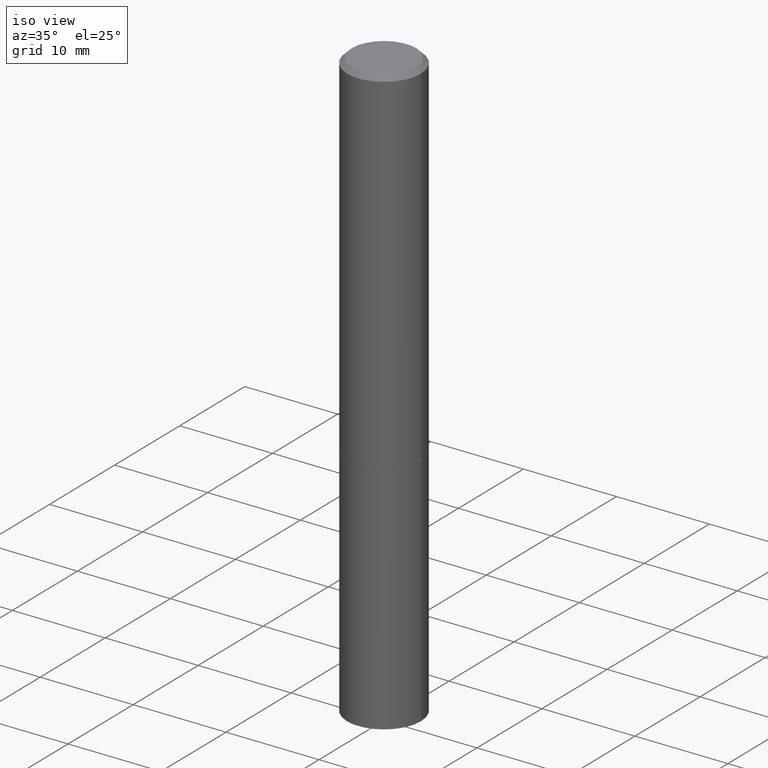
[diagram: clean part render]
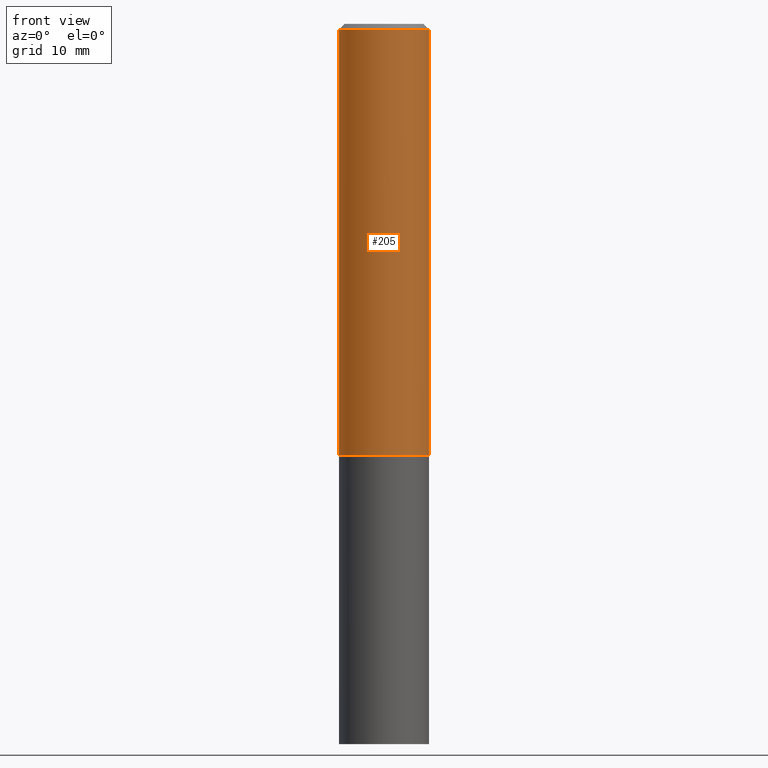
[diagram: tour spotlight — one face highlighted and labeled with its STEP entity id]
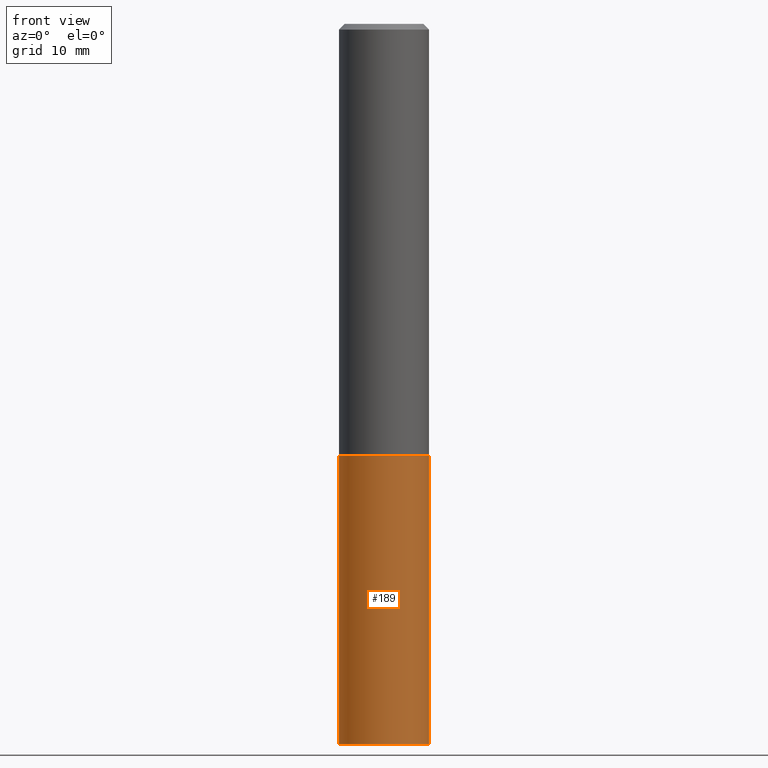
[diagram: tour spotlight — one face highlighted and labeled with its STEP entity id]
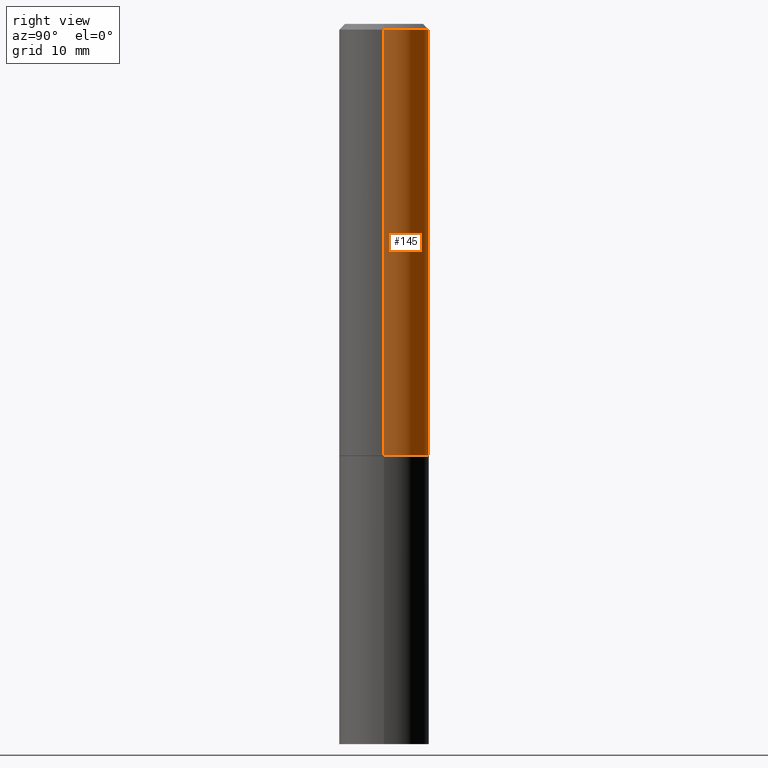
[diagram: tour spotlight — one face highlighted and labeled with its STEP entity id]
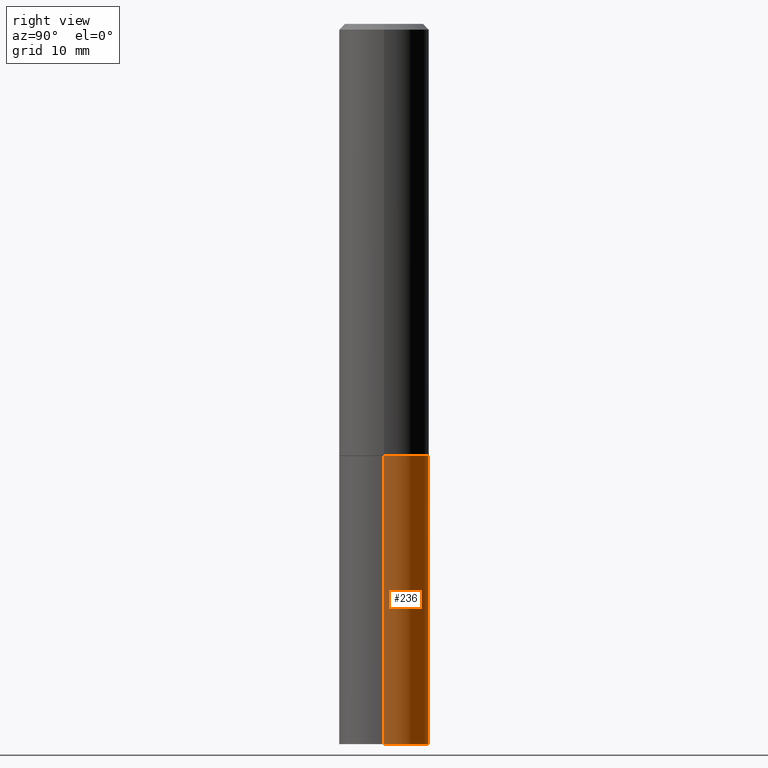
[diagram: tour spotlight — one face highlighted and labeled with its STEP entity id]
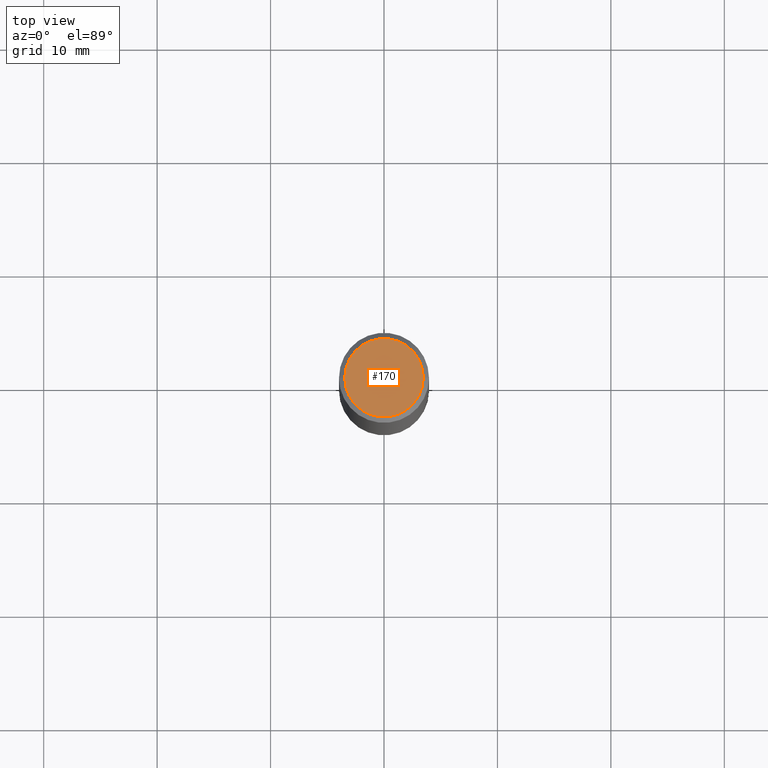
[diagram: tour spotlight — one face highlighted and labeled with its STEP entity id]
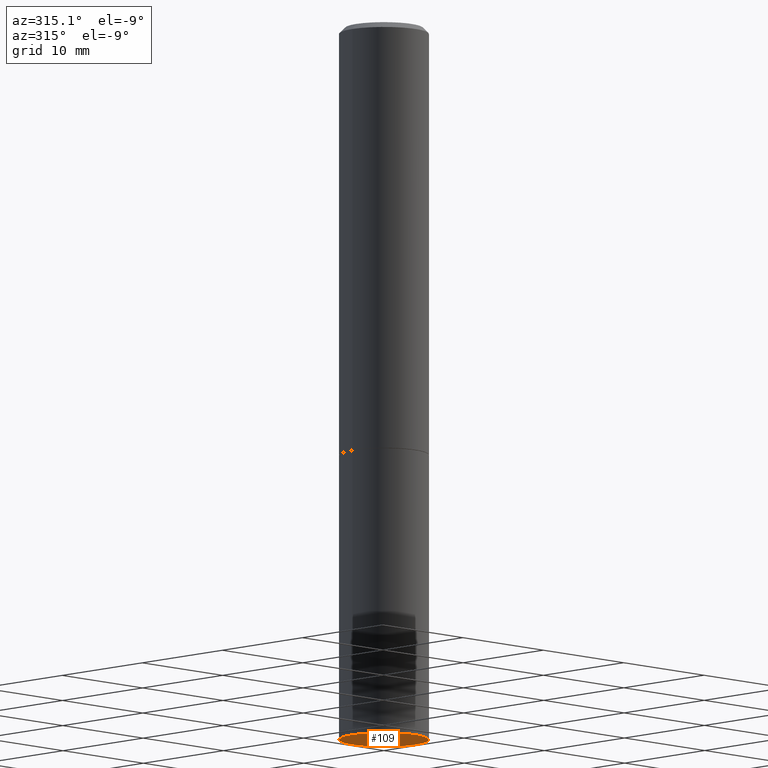
[diagram: tour spotlight — one face highlighted and labeled with its STEP entity id]
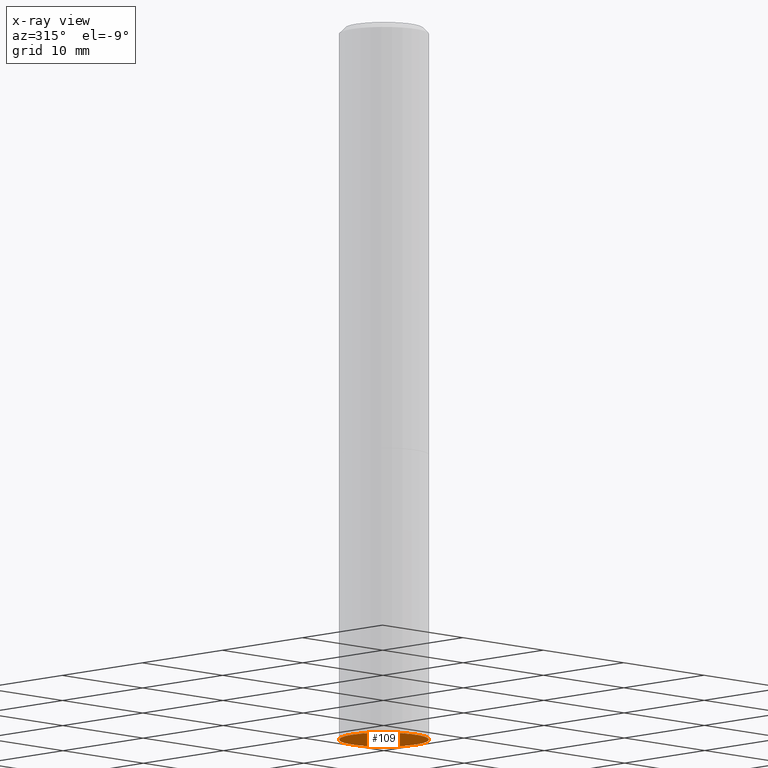
[diagram: x-ray of the same camera — body ghosted, this tour face saturated]
A machine part: a face-by-face anatomy tour. The part has 12 B-rep faces; the first image is the clean iso view, then the 6 largest visible faces are spotlighted one at a time (largest first), each with its STEP entity span.

Face 1 — front view, entity #205. In plain terms, the highlighted cylindrical surface (partial cylindrical patch) has radius 3.9687 mm, axis along (-0, 0, 1).
Definition (entity closure, byte-faithful):
#32 = DIRECTION ( 'NONE',  ( -2.445468806185136877E-29, 3.491481338843145188E-15, 1.000000000000000000 ) ) ;
#37 = EDGE_LOOP ( 'NONE', ( #268, #164, #311, #252 ) ) ;
#68 = DIRECTION ( 'NONE',  ( -2.445468806185136597E-29, 3.491481338843145583E-15, 1.000000000000000000 ) ) ;
#69 = VERTEX_POINT ( 'NONE', #113 ) ;
#73 = VERTEX_POINT ( 'NONE', #337 ) ;
#89 = DIRECTION ( 'NONE',  ( 1.000000000000000000, -6.982962677686266711E-15, 4.876176775795935232E-29 ) ) ;
#113 = CARTESIAN_POINT ( 'NONE',  ( 0.1562500000000000000, -6.324818445314355132E-15, -1.499000000000000110 ) ) ;
#119 = CARTESIAN_POINT ( 'NONE',  ( -0.1562499999999999445, 1.110223024625156146E-15, -7.685836078523286956E-30 ) ) ;
#136 = AXIS2_PLACEMENT_3D ( 'NONE', #215, #68, #251 ) ;
#137 = DIRECTION ( 'NONE',  ( -2.445468806185136877E-29, 3.491481338843145188E-15, 1.000000000000000000 ) ) ;
#151 = FACE_OUTER_BOUND ( 'NONE', #37, .T. ) ;
#163 = VERTEX_POINT ( 'NONE', #279 ) ;
#164 = ORIENTED_EDGE ( 'NONE', *, *, #356, .T. ) ;
#167 = EDGE_CURVE ( 'NONE', #69, #73, #362, .T. ) ;
#174 = CARTESIAN_POINT ( 'NONE',  ( 0.1562499999999999445, -1.091087918388478779E-15, 7.619026212181146173E-30 ) ) ;
#182 = CARTESIAN_POINT ( 'NONE',  ( 0.000000000000000000, 0.000000000000000000, 0.000000000000000000 ) ) ;
#205 = ADVANCED_FACE ( 'NONE', ( #151 ), #316, .T. ) ;
#212 = VECTOR ( 'NONE', #32, 39.37007874015748143 ) ;
#213 = AXIS2_PLACEMENT_3D ( 'NONE', #296, #325, #224 ) ;
#215 = CARTESIAN_POINT ( 'NONE',  ( 3.665757740471519853E-29, -5.233730526925875958E-15, -1.499000000000000110 ) ) ;
#222 = VECTOR ( 'NONE', #137, 39.37007874015748143 ) ;
#224 = DIRECTION ( 'NONE',  ( 1.000000000000000000, -6.982962677686265133E-15, 0.000000000000000000 ) ) ;
#230 = EDGE_CURVE ( 'NONE', #275, #163, #263, .T. ) ;
#239 = AXIS2_PLACEMENT_3D ( 'NONE', #182, #348, #89 ) ;
#251 = DIRECTION ( 'NONE',  ( 1.000000000000000000, -6.982962677686269077E-15, 0.000000000000000000 ) ) ;
#252 = ORIENTED_EDGE ( 'NONE', *, *, #359, .F. ) ;
#263 = LINE ( 'NONE', #119, #212 ) ;
#268 = ORIENTED_EDGE ( 'NONE', *, *, #230, .F. ) ;
#275 = VERTEX_POINT ( 'NONE', #287 ) ;
#279 = CARTESIAN_POINT ( 'NONE',  ( -0.1562499999999998335, 1.021258291611615086E-15, -0.02000000000000003511 ) ) ;
#287 = CARTESIAN_POINT ( 'NONE',  ( -0.1562500000000000000, -1.541557052226212102E-15, -1.499000000000000110 ) ) ;
#296 = CARTESIAN_POINT ( 'NONE',  ( 4.890937612370281041E-31, -6.982962677686302702E-17, -0.02000000000000003511 ) ) ;
#311 = ORIENTED_EDGE ( 'NONE', *, *, #167, .T. ) ;
#316 = CYLINDRICAL_SURFACE ( 'NONE', #239, 0.1562499999999999445 ) ;
#325 = DIRECTION ( 'NONE',  ( -2.445468806185136597E-29, 3.491481338843145583E-15, 1.000000000000000000 ) ) ;
#337 = CARTESIAN_POINT ( 'NONE',  ( 0.1562499999999998335, -1.141782438928663724E-15, -0.02000000000000003511 ) ) ;
#339 = CIRCLE ( 'NONE', #136, 0.1562500000000000000 ) ;
#346 = CIRCLE ( 'NONE', #213, 0.1562499999999998335 ) ;
#348 = DIRECTION ( 'NONE',  ( -2.445468806185136597E-29, 3.491481338843145583E-15, 1.000000000000000000 ) ) ;
#356 = EDGE_CURVE ( 'NONE', #275, #69, #339, .T. ) ;
#359 = EDGE_CURVE ( 'NONE', #163, #73, #346, .T. ) ;
#362 = LINE ( 'NONE', #174, #222 ) ;

Face 2 — front view, entity #189. In plain terms, the highlighted cylindrical surface (partial cylindrical patch) has radius 3.9688 mm, axis along (-0, 0, 1).
Definition (entity closure, byte-faithful):
#1 = EDGE_CURVE ( 'NONE', #314, #195, #307, .T. ) ;
#21 = LINE ( 'NONE', #332, #179 ) ;
#59 = VECTOR ( 'NONE', #277, 39.37007874015748143 ) ;
#78 = DIRECTION ( 'NONE',  ( -2.445468806185136877E-29, 3.491481338843145188E-15, 1.000000000000000000 ) ) ;
#80 = EDGE_CURVE ( 'NONE', #301, #187, #21, .T. ) ;
#88 = CARTESIAN_POINT ( 'NONE',  ( 0.000000000000000000, 0.000000000000000000, 0.000000000000000000 ) ) ;
#90 = AXIS2_PLACEMENT_3D ( 'NONE', #108, #133, #335 ) ;
#91 = EDGE_CURVE ( 'NONE', #314, #301, #120, .T. ) ;
#103 = ORIENTED_EDGE ( 'NONE', *, *, #91, .T. ) ;
#104 = AXIS2_PLACEMENT_3D ( 'NONE', #88, #242, #183 ) ;
#108 = CARTESIAN_POINT ( 'NONE',  ( 6.113672015462842613E-29, -8.728703347107864943E-15, -2.500000000000000000 ) ) ;
#118 = CARTESIAN_POINT ( 'NONE',  ( 0.1562500000000000000, -9.819791265496344905E-15, -2.500000000000000000 ) ) ;
#120 = CIRCLE ( 'NONE', #90, 0.1562500000000000000 ) ;
#133 = DIRECTION ( 'NONE',  ( -2.445468806185136597E-29, 3.491481338843145583E-15, 1.000000000000000000 ) ) ;
#154 = EDGE_LOOP ( 'NONE', ( #216, #103, #360, #299 ) ) ;
#177 = DIRECTION ( 'NONE',  ( -2.445468806185136597E-29, 3.491481338843145583E-15, 1.000000000000000000 ) ) ;
#179 = VECTOR ( 'NONE', #78, 39.37007874015748143 ) ;
#183 = DIRECTION ( 'NONE',  ( 1.000000000000000000, -6.982962677686266711E-15, 4.876176775795936353E-29 ) ) ;
#184 = CARTESIAN_POINT ( 'NONE',  ( -0.1562500000000000000, -5.872739653061135414E-15, -2.500000000000000000 ) ) ;
#187 = VERTEX_POINT ( 'NONE', #235 ) ;
#189 = ADVANCED_FACE ( 'NONE', ( #261 ), #318, .T. ) ;
#195 = VERTEX_POINT ( 'NONE', #343 ) ;
#216 = ORIENTED_EDGE ( 'NONE', *, *, #1, .F. ) ;
#235 = CARTESIAN_POINT ( 'NONE',  ( 0.1562500000000000000, -6.328309926653198139E-15, -1.500000000000000222 ) ) ;
#237 = DIRECTION ( 'NONE',  ( 1.000000000000000000, -6.982962677686269077E-15, 0.000000000000000000 ) ) ;
#242 = DIRECTION ( 'NONE',  ( -2.445468806185136597E-29, 3.491481338843145583E-15, 1.000000000000000000 ) ) ;
#259 = CARTESIAN_POINT ( 'NONE',  ( -0.1562500000000000000, 1.110223024625156540E-15, -7.685836078523291160E-30 ) ) ;
#261 = FACE_OUTER_BOUND ( 'NONE', #154, .T. ) ;
#265 = AXIS2_PLACEMENT_3D ( 'NONE', #315, #177, #237 ) ;
#277 = DIRECTION ( 'NONE',  ( -2.445468806185136877E-29, 3.491481338843145188E-15, 1.000000000000000000 ) ) ;
#299 = ORIENTED_EDGE ( 'NONE', *, *, #340, .F. ) ;
#301 = VERTEX_POINT ( 'NONE', #118 ) ;
#307 = LINE ( 'NONE', #259, #59 ) ;
#313 = CIRCLE ( 'NONE', #265, 0.1562500000000000000 ) ;
#314 = VERTEX_POINT ( 'NONE', #184 ) ;
#315 = CARTESIAN_POINT ( 'NONE',  ( 3.668203209277704895E-29, -5.237222008264718177E-15, -1.500000000000000222 ) ) ;
#318 = CYLINDRICAL_SURFACE ( 'NONE', #104, 0.1562500000000000000 ) ;
#332 = CARTESIAN_POINT ( 'NONE',  ( 0.1562500000000000000, -1.091087918388479174E-15, 7.619026212181150377E-30 ) ) ;
#335 = DIRECTION ( 'NONE',  ( 1.000000000000000000, -6.982962677686269077E-15, 0.000000000000000000 ) ) ;
#340 = EDGE_CURVE ( 'NONE', #195, #187, #313, .T. ) ;
#343 = CARTESIAN_POINT ( 'NONE',  ( -0.1562500000000000000, -5.872739653061135414E-15, -1.500000000000000222 ) ) ;
#360 = ORIENTED_EDGE ( 'NONE', *, *, #80, .T. ) ;

Face 3 — right view, entity #145. In plain terms, the highlighted cylindrical surface (partial cylindrical patch) has radius 3.9687 mm, axis along (-0, 0, 1).
Definition (entity closure, byte-faithful):
#4 = CARTESIAN_POINT ( 'NONE',  ( 4.890937612370281041E-31, -6.982962677686302702E-17, -0.02000000000000003511 ) ) ;
#13 = ORIENTED_EDGE ( 'NONE', *, *, #230, .T. ) ;
#22 = CARTESIAN_POINT ( 'NONE',  ( 0.000000000000000000, 0.000000000000000000, 0.000000000000000000 ) ) ;
#30 = DIRECTION ( 'NONE',  ( -2.445468806185136597E-29, 3.491481338843145583E-15, 1.000000000000000000 ) ) ;
#32 = DIRECTION ( 'NONE',  ( -2.445468806185136877E-29, 3.491481338843145188E-15, 1.000000000000000000 ) ) ;
#52 = DIRECTION ( 'NONE',  ( -2.445468806185136597E-29, 3.491481338843145583E-15, 1.000000000000000000 ) ) ;
#69 = VERTEX_POINT ( 'NONE', #113 ) ;
#73 = VERTEX_POINT ( 'NONE', #337 ) ;
#76 = CIRCLE ( 'NONE', #207, 0.1562500000000000000 ) ;
#113 = CARTESIAN_POINT ( 'NONE',  ( 0.1562500000000000000, -6.324818445314355132E-15, -1.499000000000000110 ) ) ;
#119 = CARTESIAN_POINT ( 'NONE',  ( -0.1562499999999999445, 1.110223024625156146E-15, -7.685836078523286956E-30 ) ) ;
#137 = DIRECTION ( 'NONE',  ( -2.445468806185136877E-29, 3.491481338843145188E-15, 1.000000000000000000 ) ) ;
#140 = CARTESIAN_POINT ( 'NONE',  ( 3.665757740471519853E-29, -5.233730526925875958E-15, -1.499000000000000110 ) ) ;
#143 = DIRECTION ( 'NONE',  ( 1.000000000000000000, -6.982962677686265133E-15, 0.000000000000000000 ) ) ;
#145 = ADVANCED_FACE ( 'NONE', ( #233 ), #171, .T. ) ;
#150 = EDGE_CURVE ( 'NONE', #69, #275, #76, .T. ) ;
#158 = CIRCLE ( 'NONE', #345, 0.1562499999999998335 ) ;
#161 = ORIENTED_EDGE ( 'NONE', *, *, #290, .F. ) ;
#163 = VERTEX_POINT ( 'NONE', #279 ) ;
#167 = EDGE_CURVE ( 'NONE', #69, #73, #362, .T. ) ;
#171 = CYLINDRICAL_SURFACE ( 'NONE', #244, 0.1562499999999999445 ) ;
#174 = CARTESIAN_POINT ( 'NONE',  ( 0.1562499999999999445, -1.091087918388478779E-15, 7.619026212181146173E-30 ) ) ;
#194 = ORIENTED_EDGE ( 'NONE', *, *, #150, .T. ) ;
#207 = AXIS2_PLACEMENT_3D ( 'NONE', #140, #52, #331 ) ;
#212 = VECTOR ( 'NONE', #32, 39.37007874015748143 ) ;
#222 = VECTOR ( 'NONE', #137, 39.37007874015748143 ) ;
#226 = DIRECTION ( 'NONE',  ( 1.000000000000000000, -6.982962677686266711E-15, 4.876176775795935232E-29 ) ) ;
#230 = EDGE_CURVE ( 'NONE', #275, #163, #263, .T. ) ;
#233 = FACE_OUTER_BOUND ( 'NONE', #294, .T. ) ;
#244 = AXIS2_PLACEMENT_3D ( 'NONE', #22, #333, #226 ) ;
#263 = LINE ( 'NONE', #119, #212 ) ;
#275 = VERTEX_POINT ( 'NONE', #287 ) ;
#279 = CARTESIAN_POINT ( 'NONE',  ( -0.1562499999999998335, 1.021258291611615086E-15, -0.02000000000000003511 ) ) ;
#287 = CARTESIAN_POINT ( 'NONE',  ( -0.1562500000000000000, -1.541557052226212102E-15, -1.499000000000000110 ) ) ;
#290 = EDGE_CURVE ( 'NONE', #73, #163, #158, .T. ) ;
#294 = EDGE_LOOP ( 'NONE', ( #194, #13, #161, #326 ) ) ;
#326 = ORIENTED_EDGE ( 'NONE', *, *, #167, .F. ) ;
#331 = DIRECTION ( 'NONE',  ( 1.000000000000000000, -6.982962677686269077E-15, 0.000000000000000000 ) ) ;
#333 = DIRECTION ( 'NONE',  ( -2.445468806185136597E-29, 3.491481338843145583E-15, 1.000000000000000000 ) ) ;
#337 = CARTESIAN_POINT ( 'NONE',  ( 0.1562499999999998335, -1.141782438928663724E-15, -0.02000000000000003511 ) ) ;
#345 = AXIS2_PLACEMENT_3D ( 'NONE', #4, #30, #143 ) ;
#362 = LINE ( 'NONE', #174, #222 ) ;

Face 4 — right view, entity #236. In plain terms, the highlighted cylindrical surface (partial cylindrical patch) has radius 3.9688 mm, axis along (-0, 0, 1).
Definition (entity closure, byte-faithful):
#1 = EDGE_CURVE ( 'NONE', #314, #195, #307, .T. ) ;
#2 = FACE_OUTER_BOUND ( 'NONE', #229, .T. ) ;
#17 = CIRCLE ( 'NONE', #282, 0.1562500000000000000 ) ;
#21 = LINE ( 'NONE', #332, #179 ) ;
#31 = DIRECTION ( 'NONE',  ( 1.000000000000000000, -6.982962677686266711E-15, 4.876176775795936353E-29 ) ) ;
#46 = AXIS2_PLACEMENT_3D ( 'NONE', #281, #284, #48 ) ;
#48 = DIRECTION ( 'NONE',  ( 1.000000000000000000, -6.982962677686269077E-15, 0.000000000000000000 ) ) ;
#49 = DIRECTION ( 'NONE',  ( -2.445468806185136597E-29, 3.491481338843145583E-15, 1.000000000000000000 ) ) ;
#55 = EDGE_CURVE ( 'NONE', #301, #314, #115, .T. ) ;
#59 = VECTOR ( 'NONE', #277, 39.37007874015748143 ) ;
#61 = DIRECTION ( 'NONE',  ( -2.445468806185136597E-29, 3.491481338843145583E-15, 1.000000000000000000 ) ) ;
#67 = ORIENTED_EDGE ( 'NONE', *, *, #80, .F. ) ;
#78 = DIRECTION ( 'NONE',  ( -2.445468806185136877E-29, 3.491481338843145188E-15, 1.000000000000000000 ) ) ;
#80 = EDGE_CURVE ( 'NONE', #301, #187, #21, .T. ) ;
#114 = DIRECTION ( 'NONE',  ( 1.000000000000000000, -6.982962677686269077E-15, 0.000000000000000000 ) ) ;
#115 = CIRCLE ( 'NONE', #46, 0.1562500000000000000 ) ;
#118 = CARTESIAN_POINT ( 'NONE',  ( 0.1562500000000000000, -9.819791265496344905E-15, -2.500000000000000000 ) ) ;
#128 = ORIENTED_EDGE ( 'NONE', *, *, #1, .T. ) ;
#132 = ORIENTED_EDGE ( 'NONE', *, *, #55, .T. ) ;
#139 = EDGE_CURVE ( 'NONE', #187, #195, #17, .T. ) ;
#179 = VECTOR ( 'NONE', #78, 39.37007874015748143 ) ;
#184 = CARTESIAN_POINT ( 'NONE',  ( -0.1562500000000000000, -5.872739653061135414E-15, -2.500000000000000000 ) ) ;
#187 = VERTEX_POINT ( 'NONE', #235 ) ;
#195 = VERTEX_POINT ( 'NONE', #343 ) ;
#228 = AXIS2_PLACEMENT_3D ( 'NONE', #347, #61, #31 ) ;
#229 = EDGE_LOOP ( 'NONE', ( #132, #128, #248, #67 ) ) ;
#235 = CARTESIAN_POINT ( 'NONE',  ( 0.1562500000000000000, -6.328309926653198139E-15, -1.500000000000000222 ) ) ;
#236 = ADVANCED_FACE ( 'NONE', ( #2 ), #366, .T. ) ;
#248 = ORIENTED_EDGE ( 'NONE', *, *, #139, .F. ) ;
#259 = CARTESIAN_POINT ( 'NONE',  ( -0.1562500000000000000, 1.110223024625156540E-15, -7.685836078523291160E-30 ) ) ;
#277 = DIRECTION ( 'NONE',  ( -2.445468806185136877E-29, 3.491481338843145188E-15, 1.000000000000000000 ) ) ;
#281 = CARTESIAN_POINT ( 'NONE',  ( 6.113672015462842613E-29, -8.728703347107864943E-15, -2.500000000000000000 ) ) ;
#282 = AXIS2_PLACEMENT_3D ( 'NONE', #308, #49, #114 ) ;
#284 = DIRECTION ( 'NONE',  ( -2.445468806185136597E-29, 3.491481338843145583E-15, 1.000000000000000000 ) ) ;
#301 = VERTEX_POINT ( 'NONE', #118 ) ;
#307 = LINE ( 'NONE', #259, #59 ) ;
#308 = CARTESIAN_POINT ( 'NONE',  ( 3.668203209277704895E-29, -5.237222008264718177E-15, -1.500000000000000222 ) ) ;
#314 = VERTEX_POINT ( 'NONE', #184 ) ;
#332 = CARTESIAN_POINT ( 'NONE',  ( 0.1562500000000000000, -1.091087918388479174E-15, 7.619026212181150377E-30 ) ) ;
#343 = CARTESIAN_POINT ( 'NONE',  ( -0.1562500000000000000, -5.872739653061135414E-15, -1.500000000000000222 ) ) ;
#347 = CARTESIAN_POINT ( 'NONE',  ( 0.000000000000000000, 0.000000000000000000, 0.000000000000000000 ) ) ;
#366 = CYLINDRICAL_SURFACE ( 'NONE', #228, 0.1562500000000000000 ) ;

Face 5 — top view, entity #170. In plain terms, the highlighted planar face has unit normal (0, -0, -1).
Definition (entity closure, byte-faithful):
#3 = DIRECTION ( 'NONE',  ( -2.445468806185136597E-29, 3.491481338843145583E-15, 1.000000000000000000 ) ) ;
#10 = AXIS2_PLACEMENT_3D ( 'NONE', #289, #342, #121 ) ;
#29 = AXIS2_PLACEMENT_3D ( 'NONE', #203, #175, #285 ) ;
#50 = CARTESIAN_POINT ( 'NONE',  ( 0.1362499999999998435, -1.038262645562516941E-15, 4.268512490107368508E-18 ) ) ;
#51 = CIRCLE ( 'NONE', #306, 0.1362499999999998435 ) ;
#84 = FACE_OUTER_BOUND ( 'NONE', #274, .T. ) ;
#96 = CIRCLE ( 'NONE', #10, 0.1362499999999998435 ) ;
#121 = DIRECTION ( 'NONE',  ( 1.000000000000000000, -6.982962677686266711E-15, 4.876388394912424373E-29 ) ) ;
#144 = CARTESIAN_POINT ( 'NONE',  ( -0.1362499999999998435, 9.863434782231838318E-16, 4.268512490093635087E-18 ) ) ;
#157 = VERTEX_POINT ( 'NONE', #50 ) ;
#170 = ADVANCED_FACE ( 'NONE', ( #84 ), #363, .F. ) ;
#175 = DIRECTION ( 'NONE',  ( 2.438088387897960049E-29, -3.491481338843145188E-15, -1.000000000000000000 ) ) ;
#203 = CARTESIAN_POINT ( 'NONE',  ( 9.514286648347525771E-16, 0.1362499999999998435, -4.735800761723278502E-16 ) ) ;
#204 = DIRECTION ( 'NONE',  ( 1.000000000000000000, -6.982962677686266711E-15, 4.876388394912424373E-29 ) ) ;
#219 = EDGE_CURVE ( 'NONE', #157, #352, #96, .T. ) ;
#253 = ORIENTED_EDGE ( 'NONE', *, *, #292, .T. ) ;
#262 = CARTESIAN_POINT ( 'NONE',  ( -1.043851414335219820E-46, 1.490343170380447200E-32, 4.268512490100411279E-18 ) ) ;
#272 = ORIENTED_EDGE ( 'NONE', *, *, #219, .T. ) ;
#274 = EDGE_LOOP ( 'NONE', ( #253, #272 ) ) ;
#285 = DIRECTION ( 'NONE',  ( -1.000000000000000000, 6.982962677686265922E-15, -4.876176775795935793E-29 ) ) ;
#289 = CARTESIAN_POINT ( 'NONE',  ( -1.043851414335219820E-46, 1.490343170380447200E-32, 4.268512490100411279E-18 ) ) ;
#292 = EDGE_CURVE ( 'NONE', #352, #157, #51, .T. ) ;
#306 = AXIS2_PLACEMENT_3D ( 'NONE', #262, #3, #204 ) ;
#342 = DIRECTION ( 'NONE',  ( -2.445468806185136597E-29, 3.491481338843145583E-15, 1.000000000000000000 ) ) ;
#352 = VERTEX_POINT ( 'NONE', #144 ) ;
#363 = PLANE ( 'NONE',  #29 ) ;

Face 6 — auxiliary view, entity #109. An x-ray twin of the same camera follows (body ghosted, this face saturated) — the face is partly hidden behind the body. In plain terms, the highlighted planar face has unit normal (0, -0, -1).
Definition (entity closure, byte-faithful):
#26 = ORIENTED_EDGE ( 'NONE', *, *, #55, .F. ) ;
#42 = ORIENTED_EDGE ( 'NONE', *, *, #91, .F. ) ;
#46 = AXIS2_PLACEMENT_3D ( 'NONE', #281, #284, #48 ) ;
#48 = DIRECTION ( 'NONE',  ( 1.000000000000000000, -6.982962677686269077E-15, 0.000000000000000000 ) ) ;
#54 = PLANE ( 'NONE',  #264 ) ;
#55 = EDGE_CURVE ( 'NONE', #301, #314, #115, .T. ) ;
#90 = AXIS2_PLACEMENT_3D ( 'NONE', #108, #133, #335 ) ;
#91 = EDGE_CURVE ( 'NONE', #314, #301, #120, .T. ) ;
#106 = EDGE_LOOP ( 'NONE', ( #26, #42 ) ) ;
#108 = CARTESIAN_POINT ( 'NONE',  ( 6.113672015462842613E-29, -8.728703347107864943E-15, -2.500000000000000000 ) ) ;
#109 = ADVANCED_FACE ( 'NONE', ( #255 ), #54, .T. ) ;
#115 = CIRCLE ( 'NONE', #46, 0.1562500000000000000 ) ;
#118 = CARTESIAN_POINT ( 'NONE',  ( 0.1562500000000000000, -9.819791265496344905E-15, -2.500000000000000000 ) ) ;
#120 = CIRCLE ( 'NONE', #90, 0.1562500000000000000 ) ;
#133 = DIRECTION ( 'NONE',  ( -2.445468806185136597E-29, 3.491481338843145583E-15, 1.000000000000000000 ) ) ;
#184 = CARTESIAN_POINT ( 'NONE',  ( -0.1562500000000000000, -5.872739653061135414E-15, -2.500000000000000000 ) ) ;
#199 = DIRECTION ( 'NONE',  ( -1.000000000000000000, 6.982962677686265922E-15, -4.876176775795935793E-29 ) ) ;
#227 = DIRECTION ( 'NONE',  ( 2.438088387897960049E-29, -3.491481338843145188E-15, -1.000000000000000000 ) ) ;
#254 = CARTESIAN_POINT ( 'NONE',  ( 1.091087918388540310E-15, 0.1562499999999912570, -2.500000000000000444 ) ) ;
#255 = FACE_OUTER_BOUND ( 'NONE', #106, .T. ) ;
#264 = AXIS2_PLACEMENT_3D ( 'NONE', #254, #227, #199 ) ;
#281 = CARTESIAN_POINT ( 'NONE',  ( 6.113672015462842613E-29, -8.728703347107864943E-15, -2.500000000000000000 ) ) ;
#284 = DIRECTION ( 'NONE',  ( -2.445468806185136597E-29, 3.491481338843145583E-15, 1.000000000000000000 ) ) ;
#301 = VERTEX_POINT ( 'NONE', #118 ) ;
#314 = VERTEX_POINT ( 'NONE', #184 ) ;
#335 = DIRECTION ( 'NONE',  ( 1.000000000000000000, -6.982962677686269077E-15, 0.000000000000000000 ) ) ;